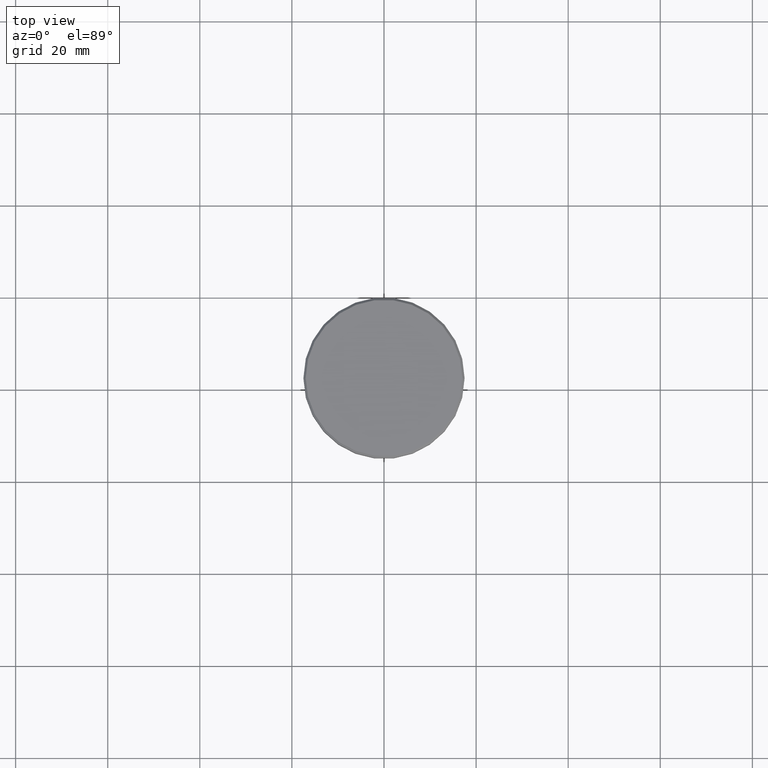
[diagram: clean part render]
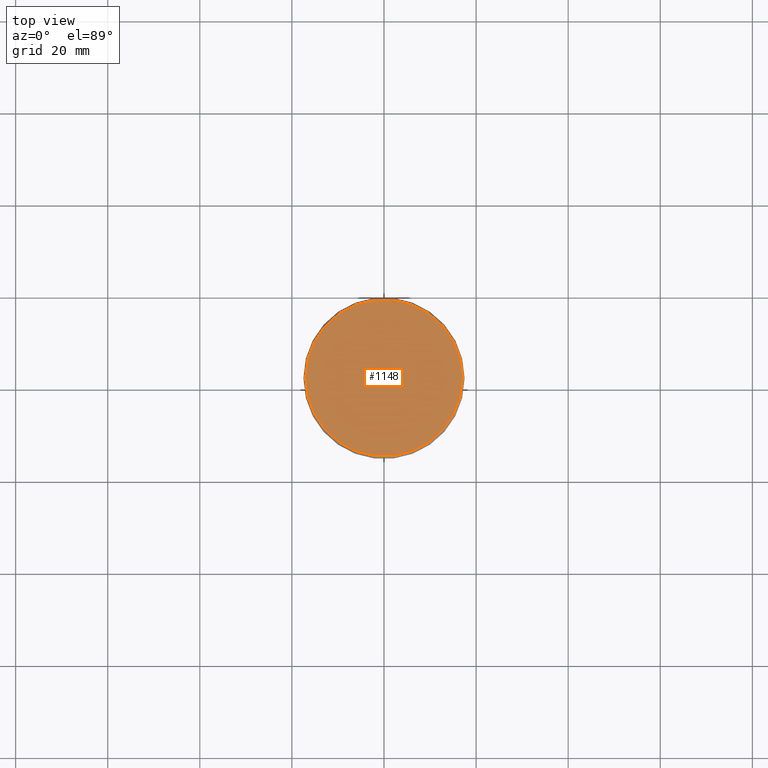
[diagram: same view with one face highlighted and labeled with its STEP entity id]
A machine part, top view. The second image highlights one B-rep face of the part: STEP entity #1148.
In plain terms, the highlighted planar face has unit normal (0, -0, 1).
Its self-contained STEP definition (entity closure, byte-faithful):
#37 = CIRCLE ( 'NONE', #95, 17.00000000000004263 ) ;
#90 = CARTESIAN_POINT ( 'NONE',  ( 17.00000000000004263, 2.112515728529187222E-15, 0.000000000000000000 ) ) ;
#95 = AXIS2_PLACEMENT_3D ( 'NONE', #494, #348, #792 ) ;
#113 = VERTEX_POINT ( 'NONE', #595 ) ;
#133 = EDGE_LOOP ( 'NONE', ( #1110, #647 ) ) ;
#136 = PLANE ( 'NONE',  #635 ) ;
#206 = EDGE_CURVE ( 'NONE', #113, #724, #917, .T. ) ;
#211 = DIRECTION ( 'NONE',  ( -0.000000000000000000, -0.000000000000000000, 1.000000000000000000 ) ) ;
#213 = FACE_OUTER_BOUND ( 'NONE', #133, .T. ) ;
#234 = DIRECTION ( 'NONE',  ( 1.000000000000000000, 0.000000000000000000, 0.000000000000000000 ) ) ;
#239 = DIRECTION ( 'NONE',  ( 0.000000000000000000, -0.000000000000000000, 1.000000000000000000 ) ) ;
#348 = DIRECTION ( 'NONE',  ( -0.000000000000000000, -0.000000000000000000, 1.000000000000000000 ) ) ;
#420 = DIRECTION ( 'NONE',  ( 1.000000000000000000, 0.000000000000000000, 0.000000000000000000 ) ) ;
#494 = CARTESIAN_POINT ( 'NONE',  ( 0.000000000000000000, 0.000000000000000000, 0.000000000000000000 ) ) ;
#511 = CARTESIAN_POINT ( 'NONE',  ( 0.000000000000000000, 0.000000000000000000, 0.000000000000000000 ) ) ;
#595 = CARTESIAN_POINT ( 'NONE',  ( -17.00000000000004263, 0.000000000000000000, 0.000000000000000000 ) ) ;
#635 = AXIS2_PLACEMENT_3D ( 'NONE', #511, #239, #420 ) ;
#647 = ORIENTED_EDGE ( 'NONE', *, *, #948, .T. ) ;
#707 = AXIS2_PLACEMENT_3D ( 'NONE', #1123, #211, #234 ) ;
#724 = VERTEX_POINT ( 'NONE', #90 ) ;
#792 = DIRECTION ( 'NONE',  ( 1.000000000000000000, 0.000000000000000000, 0.000000000000000000 ) ) ;
#917 = CIRCLE ( 'NONE', #707, 17.00000000000004263 ) ;
#948 = EDGE_CURVE ( 'NONE', #724, #113, #37, .T. ) ;
#1110 = ORIENTED_EDGE ( 'NONE', *, *, #206, .T. ) ;
#1123 = CARTESIAN_POINT ( 'NONE',  ( 0.000000000000000000, 0.000000000000000000, 0.000000000000000000 ) ) ;
#1148 = ADVANCED_FACE ( 'NONE', ( #213 ), #136, .T. ) ;